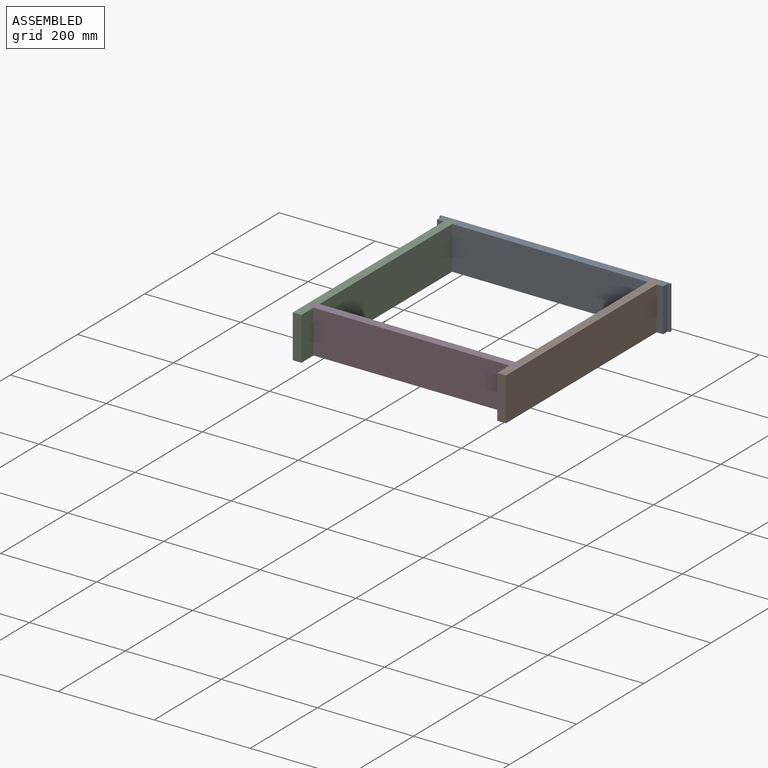
[diagram: assembled view]
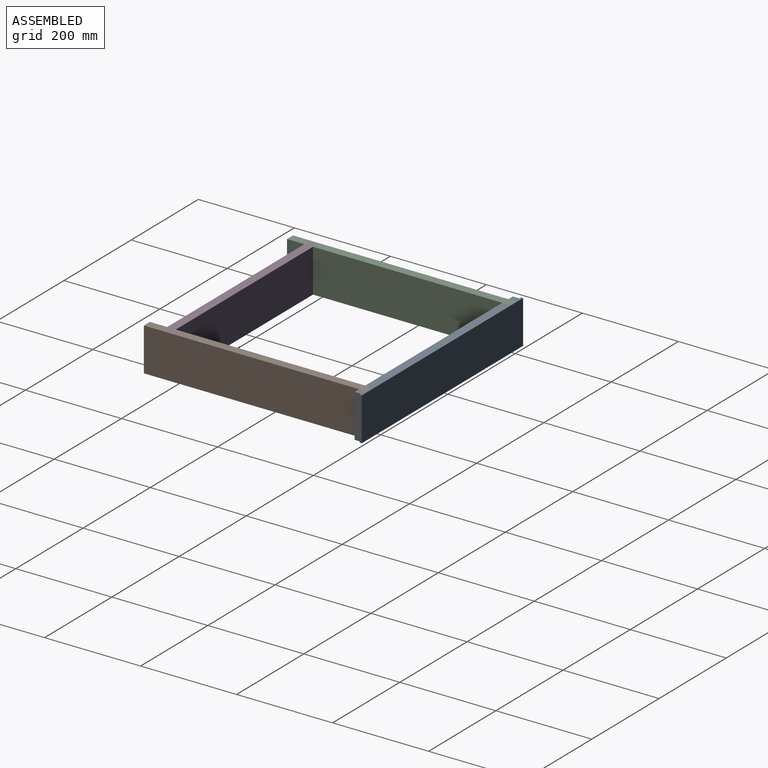
[diagram: assembled view, second angle]
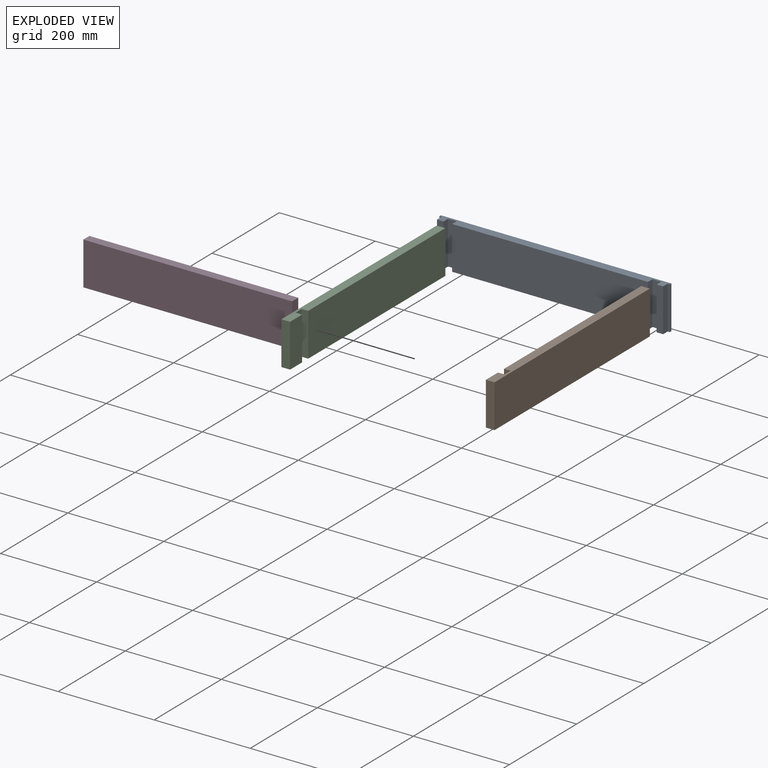
[diagram: exploded view]
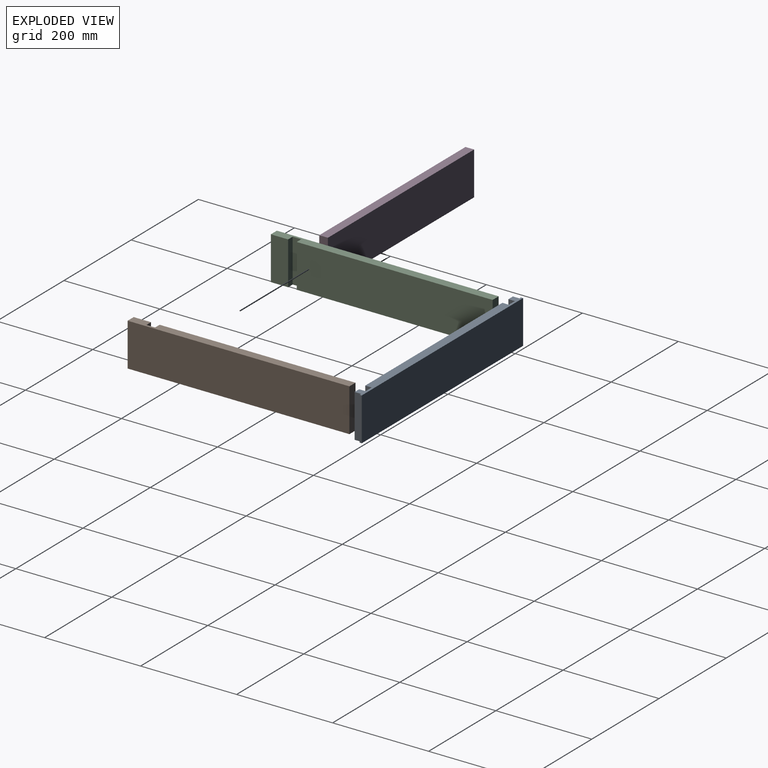
[diagram: exploded view, second angle]
ASSEMBLY  parts=4 mates=3
PART A: 18 faces, bbox 480x18x90 mm
  f0: plane 90x4.5mm, normal (0,-1,0), area 405mm2, adj f3,f4,f5,f15
  f1: plane 90x18mm, normal (0,-1,0), area 1620mm2, adj f3,f5,f10,f12
  f2: plane 90x18mm, normal (0,-1,0), area 1620mm2, adj f3,f5,f9,f16
  f3: plane 480x18mm, normal (0,0,-1), area 8032.5mm2, adj f0,f1,f2,f4,f6,f7,f8,f9
  f4: plane 90x4.5mm, normal (1,0,0), area 405mm2, adj f0,f3,f5,f7
  f5: plane 480x18mm, normal (0,0,1), area 8032.5mm2, adj f0,f1,f2,f4,f6,f7,f8,f9
  f6: plane 90x4.5mm, normal (-1,0,0), area 405mm2, adj f3,f5,f7,f8
  f7: plane 480x90mm, normal (0,1,0), area 43200mm2, adj f3,f4,f5,f6
  f8: plane 90x4.5mm, normal (0,-1,0), area 405mm2, adj f3,f5,f6,f13
  f9: plane 90x13.5mm, normal (1,0,0), area 1215mm2, adj f2,f3,f5,f11
  f10: plane 90x13.5mm, normal (-1,0,0), area 1215mm2, adj f1,f3,f5,f11
  f11: plane 408x90mm, normal (0,-1,0), area 36720mm2, adj f3,f5,f9,f10
  f12: plane 90x13.5mm, normal (1,0,0), area 1215mm2, adj f1,f3,f5,f14
  f13: plane 90x13.5mm, normal (-1,0,0), area 1215mm2, adj f3,f5,f8,f14
  f14: plane 90x13.5mm, normal (0,-1,0), area 1215mm2, adj f3,f5,f12,f13
  f15: plane 90x13.5mm, normal (1,0,0), area 1215mm2, adj f0,f3,f5,f17
  f16: plane 90x13.5mm, normal (-1,0,0), area 1215mm2, adj f2,f3,f5,f17
  f17: plane 90x13.5mm, normal (0,-1,0), area 1215mm2, adj f3,f5,f15,f16
PART B: 10 faces, bbox 18x462x90 mm
  f0: plane 462x18mm, normal (0,0,1), area 8073mm2, adj f2,f3,f4,f5,f6,f7,f8,f9
  f1: plane 462x18mm, normal (0,0,-1), area 8073mm2, adj f2,f3,f4,f5,f6,f7,f8,f9
  f2: plane 90x18mm, normal (1,0,0), area 1620mm2, adj f0,f1,f4,f7
  f3: plane 462x90mm, normal (-1,0,0), area 41580mm2, adj f0,f1,f5,f8
  f4: plane 90x13.5mm, normal (0,-1,0), area 1215mm2, adj f0,f1,f2,f6
  f5: plane 90x18mm, normal (0,1,0), area 1620mm2, adj f0,f1,f3,f6
  f6: plane 408x90mm, normal (1,0,0), area 36720mm2, adj f0,f1,f4,f5
  f7: plane 90x13.5mm, normal (0,1,0), area 1215mm2, adj f0,f1,f2,f9
  f8: plane 90x18mm, normal (0,-1,0), area 1620mm2, adj f0,f1,f3,f9
  f9: plane 90x36mm, normal (1,0,0), area 3240mm2, adj f0,f1,f7,f8
PART C: same geometry as B
PART D: 6 faces, bbox 435x18x90 mm
  f0: plane 435x90mm, normal (0,1,0), area 39150mm2, adj f1,f3,f4,f5
  f1: plane 435x18mm, normal (0,0,1), area 7830mm2, adj f0,f2,f4,f5
  f2: plane 435x90mm, normal (0,-1,0), area 39150mm2, adj f1,f3,f4,f5
  f3: plane 435x18mm, normal (0,0,-1), area 7830mm2, adj f0,f2,f4,f5
  f4: plane 90x18mm, normal (1,0,0), area 1620mm2, adj f0,f1,f2,f3
  f5: plane 90x18mm, normal (-1,0,0), area 1620mm2, adj f0,f1,f2,f3
PLACE A t=(-6,0,0)mm
PLACE B rot(axis=(0,1,0),180deg) t=(420,0,-20)mm
PLACE C t=(-432,0,0)mm
PLACE D t=(-432,0,0)mm
MATE fastened C.f5 <-> A.f1  axis (0,1,0) through (-210,0,35)mm
MATE fastened A.f2 <-> B.f5  axis (0,-1,0) through (198,0,35)mm
MATE fastened B.f2 <-> D.f4  axis (-1,0,0) through (211.5,-417,-10)mm
